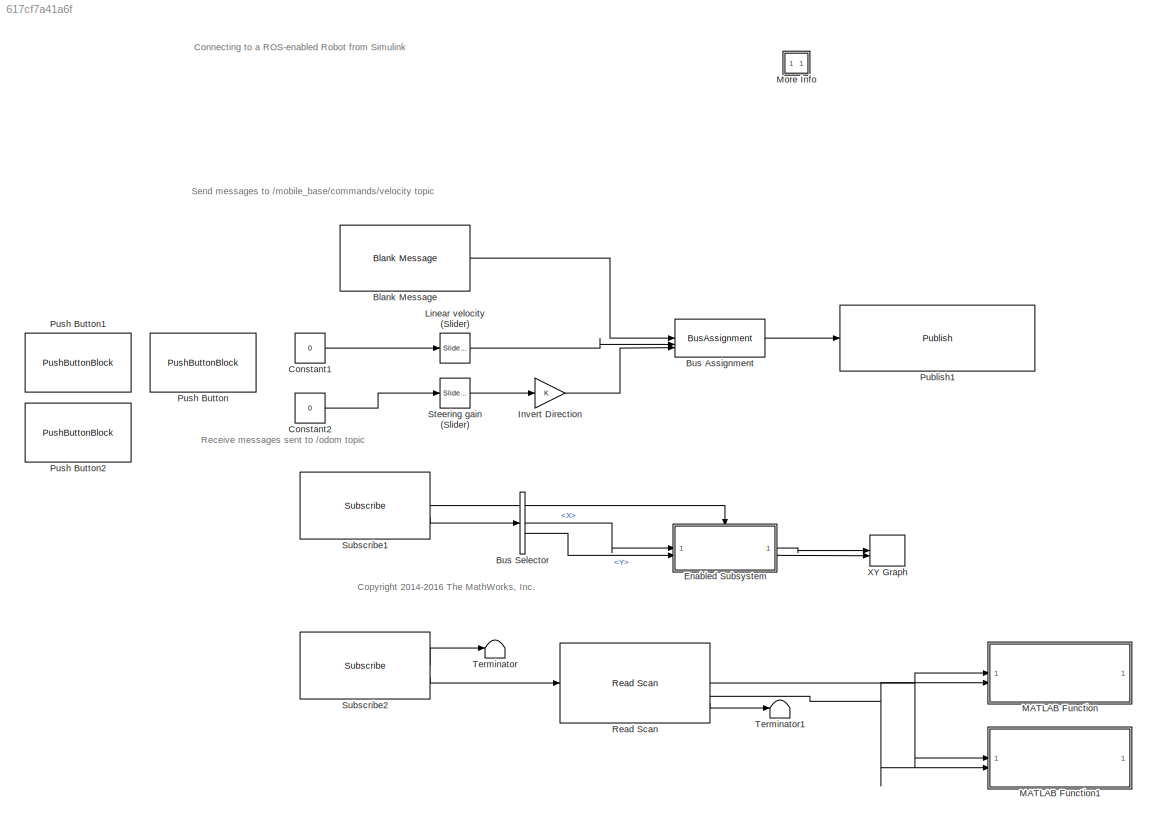
MODEL slx_617cf7a41a6f
KIND model
CONFIG AbsTol = auto
CONFIG EnableMultiTasking = on
CONFIG FixedStep = 0.01
CONFIG MaxStep = auto
CONFIG MinStep = auto
CONFIG RelTol = 1e-3
CONFIG SampleTimeConstraint = Unconstrained
CONFIG SolverName = FixedStepDiscrete
CONFIG StartTime = 0.0
CONFIG StopTime = Inf
WORKSPACE source: mxarray member
WORKSPACE SL_ROS_VariableLengthArrays_MaxSizes: object (value not decoded)
BLOCK [Reference] Blank Message  REF=robotlib/Blank Message
  SourceBlock = robotlib/Blank Message
  SourceType = ROS Blank Message
BLOCK [BusAssignment] Bus Assignment
  AssignedSignals = Linear.X,Angular.Z
  DialogController = Simulink.DDGSource_BusAssignment
BLOCK [BusSelector] Bus Selector
  DialogController = Simulink.DDGSource_BusSelector
  OutputSignals = Pose.Pose.Position.X,Pose.Pose.Position.Y
BLOCK [Constant] Constant1
  Value = 0
BLOCK [Constant] Constant2
  Value = 0
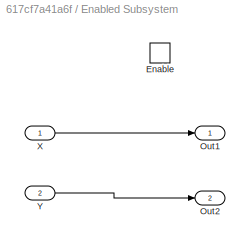
BLOCK [SubSystem] Enabled Subsystem
  TreatAsAtomicUnit = on
BLOCK [EnablePort] Enabled Subsystem/Enable
BLOCK [Outport] Enabled Subsystem/Out1
BLOCK [Outport] Enabled Subsystem/Out2
  Port = 2
BLOCK [Inport] Enabled Subsystem/X
BLOCK [Inport] Enabled Subsystem/Y
  Port = 2
BLOCK [Gain] Invert Direction
BLOCK [Reference] Linear velocity (Slider)  REF=simulink/Math
Operations/Slider
Gain
  SourceBlock = simulink/Math\nOperations/Slider\nGain
  SourceType = Slider Gain
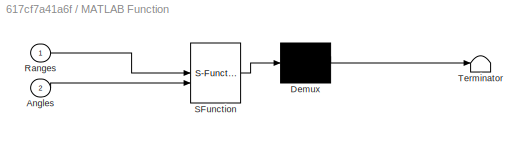
BLOCK [SubSystem] MATLAB Function
  ErrorFcn = Stateflow.Translate.translate
  LibrarySourceBlock = simulink/User-Defined\nFunctions/MATLAB Function
  PermitHierarchicalResolution = ExplicitOnly
  SFBlockType = MATLAB Function
  TreatAsAtomicUnit = on
BLOCK [Demux] MATLAB Function/ Demux 
  Outputs = 1
BLOCK [S-Function] MATLAB Function/ SFunction 
  EnableBusSupport = on
  FunctionName = sf_sfun
  PortCounts = [2 1]
  SFcnIsStateOwnerBlock = off
  SFunctionDeploymentMode = off
  Tag = Stateflow S-Function 2
BLOCK [Terminator] MATLAB Function/ Terminator 
BLOCK [Inport] MATLAB Function/Angles
  Port = 2
BLOCK [Inport] MATLAB Function/Ranges
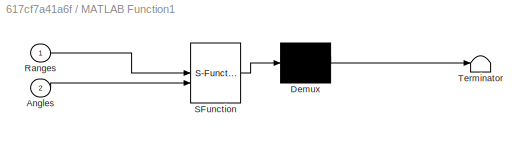
BLOCK [SubSystem] MATLAB Function1
  ErrorFcn = Stateflow.Translate.translate
  LibrarySourceBlock = simulink/User-Defined\nFunctions/MATLAB Function
  PermitHierarchicalResolution = ExplicitOnly
  SFBlockType = MATLAB Function
  TreatAsAtomicUnit = on
BLOCK [Demux] MATLAB Function1/ Demux 
  Outputs = 1
BLOCK [S-Function] MATLAB Function1/ SFunction 
  EnableBusSupport = on
  FunctionName = sf_sfun
  PortCounts = [2 1]
  SFcnIsStateOwnerBlock = off
  SFunctionDeploymentMode = off
  Tag = Stateflow S-Function 1
BLOCK [Terminator] MATLAB Function1/ Terminator 
BLOCK [Inport] MATLAB Function1/Angles
  Port = 2
BLOCK [Inport] MATLAB Function1/Ranges
BLOCK [SubSystem] More Info
  OpenFcn = showdemo(bdroot(gcb))
BLOCK [Reference] Publish1  REF=robotlib/Publish
  SourceBlock = robotlib/Publish
  SourceType = ROS Publish
BLOCK [PushButtonBlock] Push Button
  ButtonText = GO
  OffValue = 0.000000
BLOCK [PushButtonBlock] Push Button1
  ButtonText = Left
  OffValue = 0.000000
BLOCK [PushButtonBlock] Push Button2
  ButtonText = Right
  OffValue = 0.000000
  OnValue = -1
BLOCK [Reference] Read Scan  REF=robotlib/Read Scan
  SourceBlock = robotlib/Read Scan
  SourceType = ros.slros.internal.block.ReadScan
BLOCK [Reference] Steering gain (Slider)  REF=simulink/Math
Operations/Slider
Gain
  SourceBlock = simulink/Math\nOperations/Slider\nGain
  SourceType = Slider Gain
BLOCK [Reference] Subscribe1  REF=robotlib/Subscribe
  SourceBlock = robotlib/Subscribe
  SourceType = ROS Subscribe
BLOCK [Reference] Subscribe2  REF=robotlib/Subscribe
  SourceBlock = robotlib/Subscribe
  SourceType = ROS Subscribe
BLOCK [Terminator] Terminator
BLOCK [Terminator] Terminator1
BLOCK [Record] XY Graph
  CompatibilityTag = XY
  FileSettingsInternal = {"entries":[{"content":{"excelSettings":{"content":{},"type":"Streamout.ExcelSettings"}},"type":"Streamout.FileSettingStorage","uuid":""}],"packageUris":["http:\/\/schema.mathworks.com\/mf0\/streamout_blocks\/R2020a"],"version":"1.0"}
  Layout = [1 1]
  SignalsInternal = {"entries":[{"content":{"signals":[{"content":{"blockPath":[],"dimensions":[1],"domain":"","lineColor":"#64d413","port":1,"sid":[""],"signalID":5810,"signalName":"Enabled\nSubsystem:1"},"type":"RecordBlkView.Signal","uuid":""},{"content":{"blockPath":[],"dimensions":[1],"domain":"","lineColor":"#ff13a6","port":2,"sid":[""],"signalID":5814,"signalName":"Enabled\nSubsystem:2"},"type":"RecordBlkView....<+164ch>
  VisualizationBindings = {"xyplotplugin":{"info":[{"series":[],"subplotID":1}]}}
ANNOTATION (root): Connecting to a ROS-enabled Robot from Simulink
ANNOTATION (root): Receive messages sent to /odom topic
ANNOTATION (root): Send messages to /mobile_base/commands/velocity topic
ANNOTATION (root): <copyright redacted>
LINE Blank Message:1 -> Bus Assignment:1
LINE Bus Assignment:1 -> Publish1:1
LINE Bus Selector:1 -> Enabled Subsystem:1
LINE Bus Selector:2 -> Enabled Subsystem:2
LINE Constant1:1 -> Linear velocity (Slider):1
LINE Constant2:1 -> Steering gain (Slider):1
LINE Enabled Subsystem/X:1 -> Enabled Subsystem/Out1:1
LINE Enabled Subsystem/Y:1 -> Enabled Subsystem/Out2:1
LINE Enabled Subsystem:1 -> XY Graph:1
LINE Enabled Subsystem:2 -> XY Graph:2
LINE Invert Direction:1 -> Bus Assignment:3
LINE Linear velocity (Slider):1 -> Bus Assignment:2
NET Read Scan:1 -> MATLAB Function1:1, MATLAB Function:1
NET Read Scan:2 -> MATLAB Function1:2, MATLAB Function:2
LINE Read Scan:3 -> Terminator1:1
LINE Steering gain (Slider):1 -> Invert Direction:1
LINE Subscribe1:1 -> Enabled Subsystem:enable
LINE Subscribe1:2 -> Bus Selector:1
LINE Subscribe2:1 -> Terminator:1
LINE Subscribe2:2 -> Read Scan:1
note: NET lines group one-source signal fan-out (src -> all destinations, sorted); 1:1 wires keep LINE
CHART MATLAB Function states=1 transitions=1
  STATE_LABEL 'eML_blk_kernel()'
  STATE_LABEL "SCRIPT:\nfunction plotLaser(Ranges, Angles)\ncoder.extrinsic('polarplot');\npersistent p;\nif isempty(p)\n    p = polarplot(0, 0, '.');\n    set(gca, 'ThetaZeroLocation', 'top', 'ThetaLim', [-135 135], ...\n        'RAxisLocation', 0, 'RLim', [0 10]);\nend\nif ishandle(p)\n    set(p, 'ThetaData', Angles);\n    set(p, 'RData', Ranges);\n    drawnow limitrate;\nend"
CHART MATLAB Function1 states=1 transitions=1
  STATE_LABEL 'eML_blk_kernel()'
  STATE_LABEL "SCRIPT:\nfunction plotLaserCart(Ranges, Angles)\ncoder.extrinsic('plot');\npersistent p;\n\nX = Ranges .* -sin(Angles);\nY = Ranges .* cos(Angles);\n\nif isempty(p)\n    p = plot(0, 0, '.');\n    set(gca,'XLim',[-5 5],'YLim',[-5 5])\nend\nif ishandle(p)\n    set(p, 'XData', X);\n    set(p, 'YData', Y);\n    drawnow limitrate;\nend"
CHART  states=0 transitions=0
CHART  states=0 transitions=0
